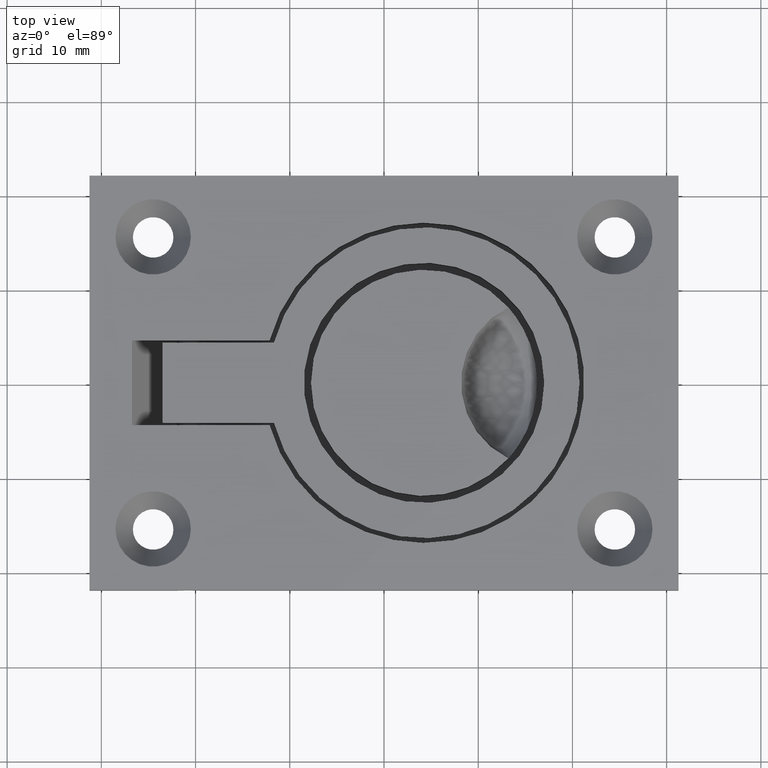
[diagram: clean part render]
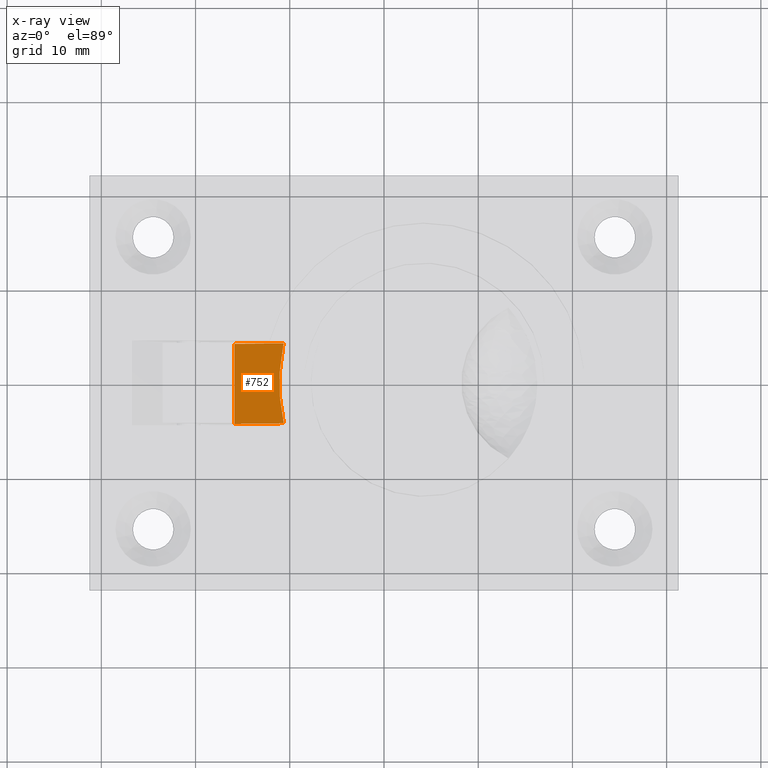
[diagram: x-ray — body ghosted, one internal face saturated and labeled with its STEP entity id]
A machine part, top view, then the same camera in x-ray: the body is ghosted and one INTERNAL B-rep face — a face not visible from any outside direction — is saturated and labeled: STEP entity #752.
In plain terms, the highlighted planar face has unit normal (0.5969, 0, -0.8023).
Its self-contained STEP definition (entity closure, byte-faithful):
#11=ELLIPSE('',#834,26.2423795239014,20.2677319446985);
#79=PLANE('',#833);
#123=FACE_OUTER_BOUND('',#191,.T.);
#191=EDGE_LOOP('',(#663,#664,#665,#666));
#287=LINE('',#1321,#337);
#288=LINE('',#1323,#338);
#289=LINE('',#1324,#339);
#337=VECTOR('',#1031,6.53190614235665);
#338=VECTOR('',#1032,8.5);
#339=VECTOR('',#1033,6.53190614235665);
#400=VERTEX_POINT('',#1317);
#401=VERTEX_POINT('',#1318);
#402=VERTEX_POINT('',#1320);
#403=VERTEX_POINT('',#1322);
#491=EDGE_CURVE('',#400,#401,#11,.T.);
#492=EDGE_CURVE('',#402,#400,#287,.T.);
#493=EDGE_CURVE('',#402,#403,#288,.T.);
#494=EDGE_CURVE('',#401,#403,#289,.T.);
#663=ORIENTED_EDGE('',*,*,#491,.F.);
#664=ORIENTED_EDGE('',*,*,#492,.F.);
#665=ORIENTED_EDGE('',*,*,#493,.T.);
#666=ORIENTED_EDGE('',*,*,#494,.F.);
#752=ADVANCED_FACE('',(#123),#79,.T.);
#833=AXIS2_PLACEMENT_3D('',#1316,#1027,#1028);
#834=AXIS2_PLACEMENT_3D('',#1319,#1029,#1030);
#1027=DIRECTION('center_axis',(0.596914929320992,0.,-0.802304535169605));
#1028=DIRECTION('ref_axis',(-0.802304535169605,0.,-0.596914929320992));
#1029=DIRECTION('center_axis',(0.596914929320992,0.,-0.802304535169605));
#1030=DIRECTION('ref_axis',(0.802304535169605,4.56792236119019E-17,0.596914929320992));
#1031=DIRECTION('',(0.802304535169604,0.,0.596914929320992));
#1032=DIRECTION('',(0.,1.,0.));
#1033=DIRECTION('',(-0.802304535169604,0.,-0.596914929320992));
#1316=CARTESIAN_POINT('Origin',(-8.50000000000001,0.,2.28520663475027));
#1317=CARTESIAN_POINT('',(-10.6348840875497,-4.25,0.696851928567712));
#1318=CARTESIAN_POINT('',(-10.6348840875497,4.25,0.696851928567712));
#1319=CARTESIAN_POINT('Origin',(9.95140013082752,2.22044604925031E-15,16.0130564999364));
#1320=CARTESIAN_POINT('',(-15.8754620088647,-4.25,-3.20214036472846));
#1321=CARTESIAN_POINT('',(-8.50000000000001,-4.25,2.28520663475027));
#1322=CARTESIAN_POINT('',(-15.8754620088647,4.25,-3.20214036472846));
#1323=CARTESIAN_POINT('',(-15.8754620088647,0.,-3.20214036472846));
#1324=CARTESIAN_POINT('',(-8.50000000000001,4.25,2.28520663475027));